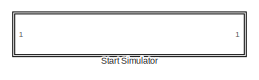
[diagram: root canvas - part 1/3, top center region]
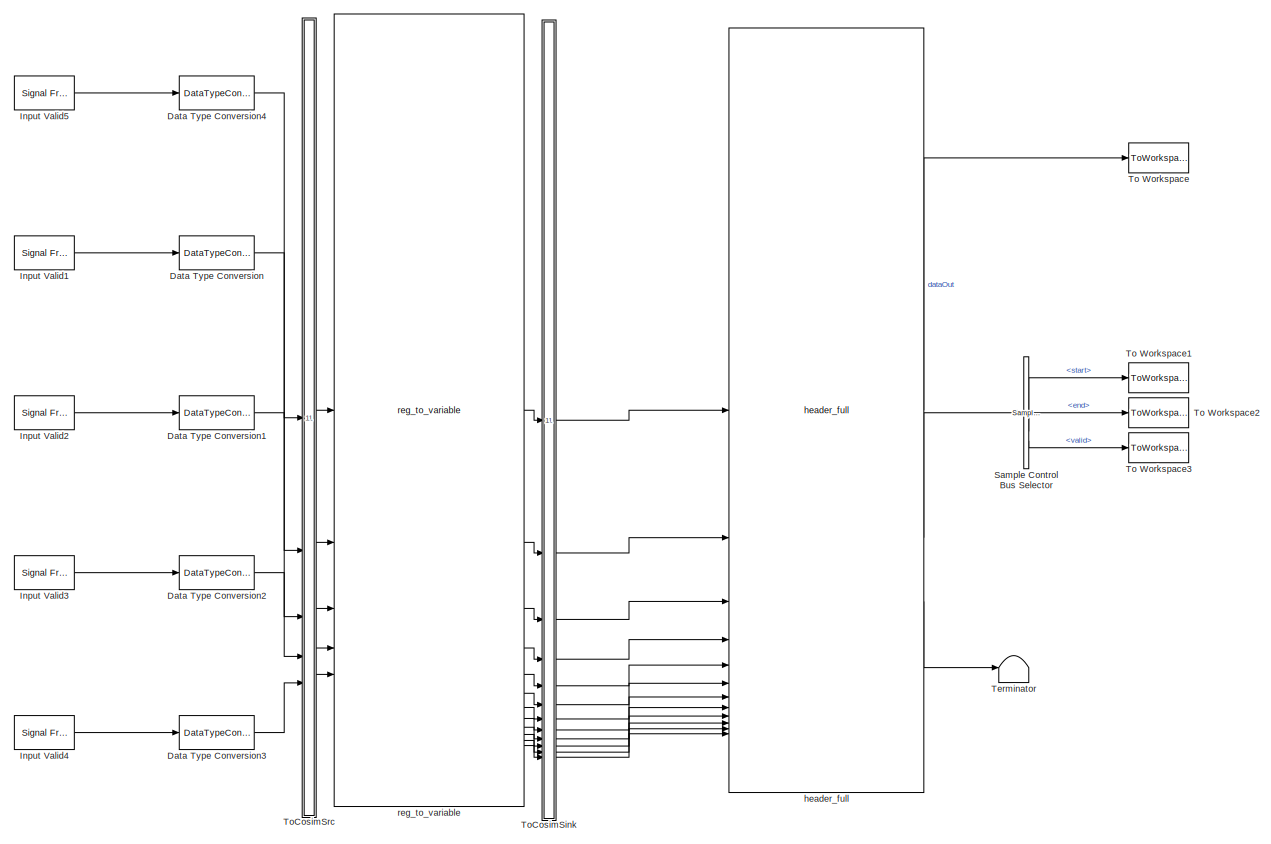
[diagram: root canvas - part 2/3, full width, top band]
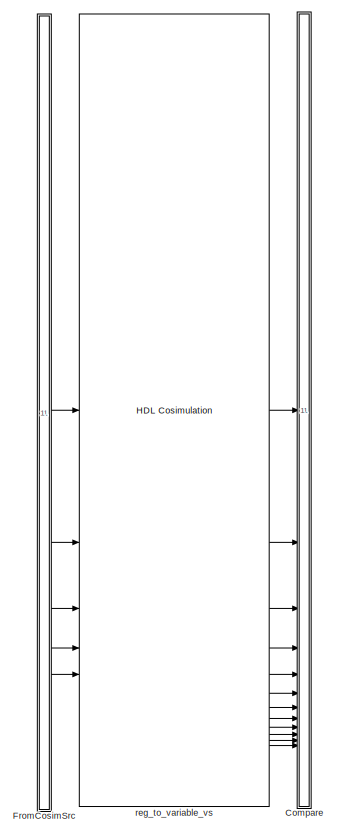
[diagram: root canvas - part 3/3, bottom center region]
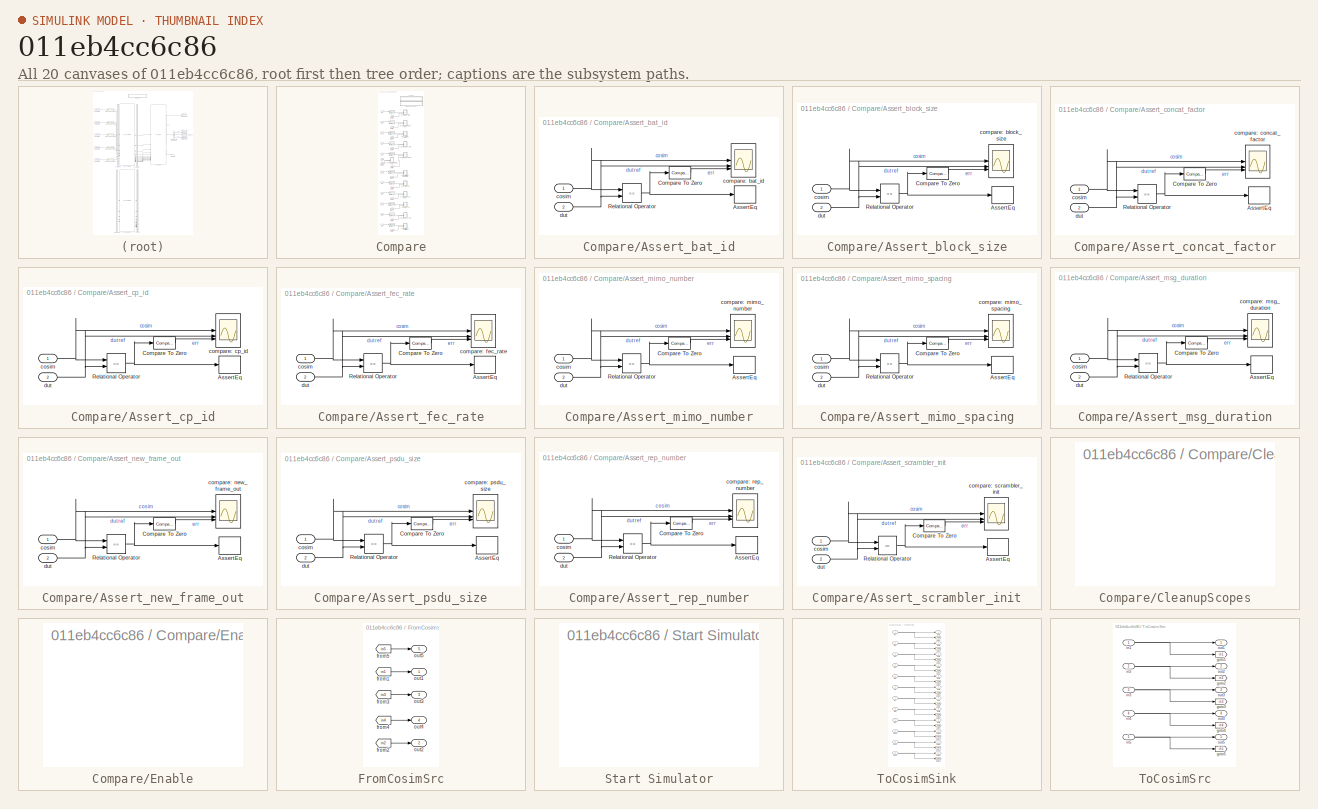
[diagram: thumbnail index - all 20 canvases of the model, root first then tree order]
MODEL slx_011eb4cc6c86
KIND model
CONFIG AbsTol = auto
CONFIG EnableMultiTasking = off
CONFIG FixedStep = auto
CONFIG MaxStep = auto
CONFIG MinStep = auto
CONFIG RelTol = 1e-3
CONFIG SampleTimeConstraint = Unconstrained
CONFIG SolverName = VariableStepAuto
CONFIG StartTime = 0.0
CONFIG StopTime = 10.0
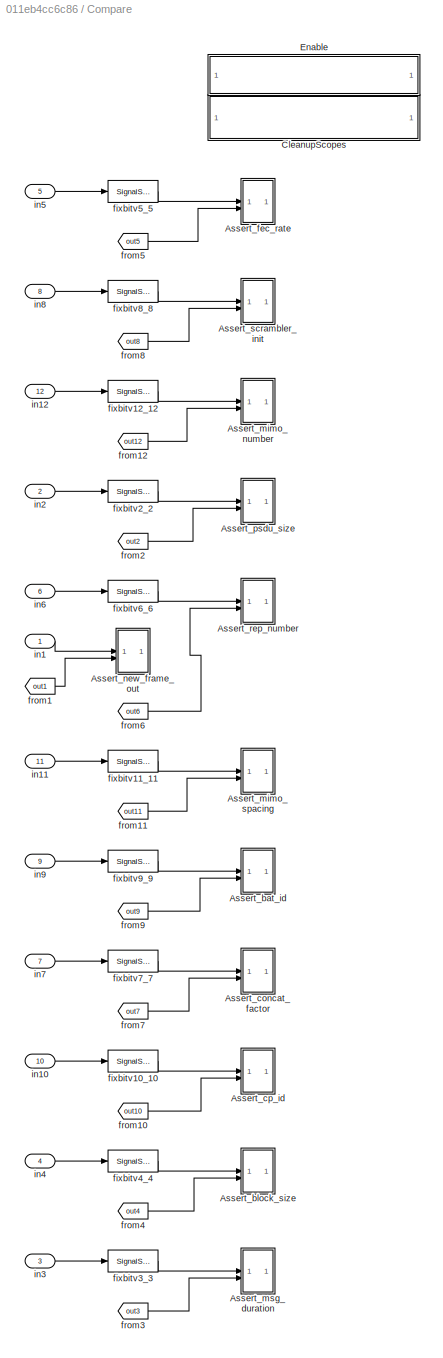
BLOCK [SubSystem] Compare
BLOCK [SubSystem] Compare/Assert_bat_id
  LibrarySourceBlock = hdlmdlgenlib/AssertEq
BLOCK [Assertion] Compare/Assert_bat_id/AssertEq
BLOCK [Reference] Compare/Assert_bat_id/Compare To Zero  REF=simulink/Logic and Bit
Operations/Compare
To Zero
  SourceBlock = simulink/Logic and Bit\nOperations/Compare\nTo Zero
  SourceType = Compare To Zero
BLOCK [RelationalOperator] Compare/Assert_bat_id/Relational Operator
  InputSameDT = off
  Operator = ==
  OutDataTypeStr = boolean
BLOCK [Scope] Compare/Assert_bat_id/compare: bat_id
  Floating = off
  NumInputPorts = 3
  ScopeSpecificationString = Simulink.scopes.TimeScopeBlockCfg('CurrentConfiguration', extmgr.ConfigurationSet(extmgr.Configuration('Core','General UI',true,'MessageLogAutoOpenMode','for warn/fail messages','ShowCloseAll',true,'ShowBringAllForward',true),extmgr.Configuration('Core','Source UI',true,'PlaybackToolbar',true),extmgr.Configuration('Sources','WiredSimulink',true,'PointsPerSignal',50000,'DataLoggingDecimation','1','...<+3704ch>
BLOCK [Inport] Compare/Assert_bat_id/cosim
BLOCK [Inport] Compare/Assert_bat_id/dut
  Port = 2
BLOCK [SubSystem] Compare/Assert_block_size
  LibrarySourceBlock = hdlmdlgenlib/AssertEq
BLOCK [Assertion] Compare/Assert_block_size/AssertEq
BLOCK [Reference] Compare/Assert_block_size/Compare To Zero  REF=simulink/Logic and Bit
Operations/Compare
To Zero
  SourceBlock = simulink/Logic and Bit\nOperations/Compare\nTo Zero
  SourceType = Compare To Zero
BLOCK [RelationalOperator] Compare/Assert_block_size/Relational Operator
  InputSameDT = off
  Operator = ==
  OutDataTypeStr = boolean
BLOCK [Scope] Compare/Assert_block_size/compare: block_size
  Floating = off
  NumInputPorts = 3
  ScopeSpecificationString = Simulink.scopes.TimeScopeBlockCfg('CurrentConfiguration', extmgr.ConfigurationSet(extmgr.Configuration('Core','General UI',true,'MessageLogAutoOpenMode','for warn/fail messages','ShowCloseAll',true,'ShowBringAllForward',true),extmgr.Configuration('Core','Source UI',true,'PlaybackToolbar',true),extmgr.Configuration('Sources','WiredSimulink',true,'PointsPerSignal',50000,'DataLoggingDecimation','1','...<+3614ch>
BLOCK [Inport] Compare/Assert_block_size/cosim
BLOCK [Inport] Compare/Assert_block_size/dut
  Port = 2
BLOCK [SubSystem] Compare/Assert_concat_factor
  LibrarySourceBlock = hdlmdlgenlib/AssertEq
BLOCK [Assertion] Compare/Assert_concat_factor/AssertEq
BLOCK [Reference] Compare/Assert_concat_factor/Compare To Zero  REF=simulink/Logic and Bit
Operations/Compare
To Zero
  SourceBlock = simulink/Logic and Bit\nOperations/Compare\nTo Zero
  SourceType = Compare To Zero
BLOCK [RelationalOperator] Compare/Assert_concat_factor/Relational Operator
  InputSameDT = off
  Operator = ==
  OutDataTypeStr = boolean
BLOCK [Scope] Compare/Assert_concat_factor/compare: concat_factor
  Floating = off
  NumInputPorts = 3
  ScopeSpecificationString = Simulink.scopes.TimeScopeBlockCfg('CurrentConfiguration', extmgr.ConfigurationSet(extmgr.Configuration('Core','General UI',true,'MessageLogAutoOpenMode','for warn/fail messages','ShowCloseAll',true,'ShowBringAllForward',true),extmgr.Configuration('Core','Source UI',true,'PlaybackToolbar',true),extmgr.Configuration('Sources','WiredSimulink',true,'PointsPerSignal',50000,'DataLoggingDecimation','1','...<+3644ch>
BLOCK [Inport] Compare/Assert_concat_factor/cosim
BLOCK [Inport] Compare/Assert_concat_factor/dut
  Port = 2
BLOCK [SubSystem] Compare/Assert_cp_id
  LibrarySourceBlock = hdlmdlgenlib/AssertEq
BLOCK [Assertion] Compare/Assert_cp_id/AssertEq
BLOCK [Reference] Compare/Assert_cp_id/Compare To Zero  REF=simulink/Logic and Bit
Operations/Compare
To Zero
  SourceBlock = simulink/Logic and Bit\nOperations/Compare\nTo Zero
  SourceType = Compare To Zero
BLOCK [RelationalOperator] Compare/Assert_cp_id/Relational Operator
  InputSameDT = off
  Operator = ==
  OutDataTypeStr = boolean
BLOCK [Scope] Compare/Assert_cp_id/compare: cp_id
  Floating = off
  NumInputPorts = 3
  ScopeSpecificationString = Simulink.scopes.TimeScopeBlockCfg('CurrentConfiguration', extmgr.ConfigurationSet(extmgr.Configuration('Core','General UI',true,'MessageLogAutoOpenMode','for warn/fail messages','ShowCloseAll',true,'ShowBringAllForward',true),extmgr.Configuration('Core','Source UI',true,'PlaybackToolbar',true),extmgr.Configuration('Sources','WiredSimulink',true,'PointsPerSignal',50000,'DataLoggingDecimation','1','...<+3644ch>
BLOCK [Inport] Compare/Assert_cp_id/cosim
BLOCK [Inport] Compare/Assert_cp_id/dut
  Port = 2
BLOCK [SubSystem] Compare/Assert_fec_rate
  LibrarySourceBlock = hdlmdlgenlib/AssertEq
BLOCK [Assertion] Compare/Assert_fec_rate/AssertEq
BLOCK [Reference] Compare/Assert_fec_rate/Compare To Zero  REF=simulink/Logic and Bit
Operations/Compare
To Zero
  SourceBlock = simulink/Logic and Bit\nOperations/Compare\nTo Zero
  SourceType = Compare To Zero
BLOCK [RelationalOperator] Compare/Assert_fec_rate/Relational Operator
  InputSameDT = off
  Operator = ==
  OutDataTypeStr = boolean
BLOCK [Scope] Compare/Assert_fec_rate/compare: fec_rate
  Floating = off
  NumInputPorts = 3
  ScopeSpecificationString = Simulink.scopes.TimeScopeBlockCfg('CurrentConfiguration', extmgr.ConfigurationSet(extmgr.Configuration('Core','General UI',true,'MessageLogAutoOpenMode','for warn/fail messages','ShowCloseAll',true,'ShowBringAllForward',true),extmgr.Configuration('Core','Source UI',true,'PlaybackToolbar',true),extmgr.Configuration('Sources','WiredSimulink',true,'PointsPerSignal',50000,'DataLoggingDecimation','1','...<+3645ch>  <repeated x4 — deduplicated; at blocks: compare: fec_rate, compare: mimo_number, compare: mimo_spacing, compare: rep_number>
BLOCK [Inport] Compare/Assert_fec_rate/cosim
BLOCK [Inport] Compare/Assert_fec_rate/dut
  Port = 2
BLOCK [SubSystem] Compare/Assert_mimo_number
  LibrarySourceBlock = hdlmdlgenlib/AssertEq
BLOCK [Assertion] Compare/Assert_mimo_number/AssertEq
BLOCK [Reference] Compare/Assert_mimo_number/Compare To Zero  REF=simulink/Logic and Bit
Operations/Compare
To Zero
  SourceBlock = simulink/Logic and Bit\nOperations/Compare\nTo Zero
  SourceType = Compare To Zero
BLOCK [RelationalOperator] Compare/Assert_mimo_number/Relational Operator
  InputSameDT = off
  Operator = ==
  OutDataTypeStr = boolean
BLOCK [Scope] Compare/Assert_mimo_number/compare: mimo_number
  Floating = off
  NumInputPorts = 3
BLOCK [Inport] Compare/Assert_mimo_number/cosim
BLOCK [Inport] Compare/Assert_mimo_number/dut
  Port = 2
BLOCK [SubSystem] Compare/Assert_mimo_spacing
  LibrarySourceBlock = hdlmdlgenlib/AssertEq
BLOCK [Assertion] Compare/Assert_mimo_spacing/AssertEq
BLOCK [Reference] Compare/Assert_mimo_spacing/Compare To Zero  REF=simulink/Logic and Bit
Operations/Compare
To Zero
  SourceBlock = simulink/Logic and Bit\nOperations/Compare\nTo Zero
  SourceType = Compare To Zero
BLOCK [RelationalOperator] Compare/Assert_mimo_spacing/Relational Operator
  InputSameDT = off
  Operator = ==
  OutDataTypeStr = boolean
BLOCK [Scope] Compare/Assert_mimo_spacing/compare: mimo_spacing
  Floating = off
  NumInputPorts = 3
BLOCK [Inport] Compare/Assert_mimo_spacing/cosim
BLOCK [Inport] Compare/Assert_mimo_spacing/dut
  Port = 2
BLOCK [SubSystem] Compare/Assert_msg_duration
  LibrarySourceBlock = hdlmdlgenlib/AssertEq
BLOCK [Assertion] Compare/Assert_msg_duration/AssertEq
BLOCK [Reference] Compare/Assert_msg_duration/Compare To Zero  REF=simulink/Logic and Bit
Operations/Compare
To Zero
  SourceBlock = simulink/Logic and Bit\nOperations/Compare\nTo Zero
  SourceType = Compare To Zero
BLOCK [RelationalOperator] Compare/Assert_msg_duration/Relational Operator
  InputSameDT = off
  Operator = ==
  OutDataTypeStr = boolean
BLOCK [Scope] Compare/Assert_msg_duration/compare: msg_duration
  Floating = off
  NumInputPorts = 3
  ScopeSpecificationString = Simulink.scopes.TimeScopeBlockCfg('CurrentConfiguration', extmgr.ConfigurationSet(extmgr.Configuration('Core','General UI',true,'MessageLogAutoOpenMode','for warn/fail messages','ShowCloseAll',true,'ShowBringAllForward',true),extmgr.Configuration('Core','Source UI',true,'PlaybackToolbar',true),extmgr.Configuration('Sources','WiredSimulink',true,'PointsPerSignal',50000,'DataLoggingDecimation','1','...<+4059ch>
BLOCK [Inport] Compare/Assert_msg_duration/cosim
BLOCK [Inport] Compare/Assert_msg_duration/dut
  Port = 2
BLOCK [SubSystem] Compare/Assert_new_frame_out
  LibrarySourceBlock = hdlmdlgenlib/AssertEq
BLOCK [Assertion] Compare/Assert_new_frame_out/AssertEq
BLOCK [Reference] Compare/Assert_new_frame_out/Compare To Zero  REF=simulink/Logic and Bit
Operations/Compare
To Zero
  SourceBlock = simulink/Logic and Bit\nOperations/Compare\nTo Zero
  SourceType = Compare To Zero
BLOCK [RelationalOperator] Compare/Assert_new_frame_out/Relational Operator
  InputSameDT = off
  Operator = ==
  OutDataTypeStr = boolean
BLOCK [Scope] Compare/Assert_new_frame_out/compare: new_frame_out
  Floating = off
  NumInputPorts = 3
  ScopeSpecificationString = Simulink.scopes.TimeScopeBlockCfg('CurrentConfiguration', extmgr.ConfigurationSet(extmgr.Configuration('Core','General UI',true,'MessageLogAutoOpenMode','for warn/fail messages','ShowCloseAll',true,'ShowBringAllForward',true),extmgr.Configuration('Core','Source UI',true,'PlaybackToolbar',true),extmgr.Configuration('Sources','WiredSimulink',true,'PointsPerSignal',50000,'DataLoggingDecimation','1','...<+3579ch>
BLOCK [Inport] Compare/Assert_new_frame_out/cosim
BLOCK [Inport] Compare/Assert_new_frame_out/dut
  Port = 2
BLOCK [SubSystem] Compare/Assert_psdu_size
  LibrarySourceBlock = hdlmdlgenlib/AssertEq
BLOCK [Assertion] Compare/Assert_psdu_size/AssertEq
BLOCK [Reference] Compare/Assert_psdu_size/Compare To Zero  REF=simulink/Logic and Bit
Operations/Compare
To Zero
  SourceBlock = simulink/Logic and Bit\nOperations/Compare\nTo Zero
  SourceType = Compare To Zero
BLOCK [RelationalOperator] Compare/Assert_psdu_size/Relational Operator
  InputSameDT = off
  Operator = ==
  OutDataTypeStr = boolean
BLOCK [Scope] Compare/Assert_psdu_size/compare: psdu_size
  Floating = off
  NumInputPorts = 3
  ScopeSpecificationString = Simulink.scopes.TimeScopeBlockCfg('CurrentConfiguration', extmgr.ConfigurationSet(extmgr.Configuration('Core','General UI',true,'MessageLogAutoOpenMode','for warn/fail messages','ShowCloseAll',true,'ShowBringAllForward',true),extmgr.Configuration('Core','Source UI',true,'PlaybackToolbar',true),extmgr.Configuration('Sources','WiredSimulink',true,'PointsPerSignal',50000,'DataLoggingDecimation','1','...<+4323ch>
BLOCK [Inport] Compare/Assert_psdu_size/cosim
BLOCK [Inport] Compare/Assert_psdu_size/dut
  Port = 2
BLOCK [SubSystem] Compare/Assert_rep_number
  LibrarySourceBlock = hdlmdlgenlib/AssertEq
BLOCK [Assertion] Compare/Assert_rep_number/AssertEq
BLOCK [Reference] Compare/Assert_rep_number/Compare To Zero  REF=simulink/Logic and Bit
Operations/Compare
To Zero
  SourceBlock = simulink/Logic and Bit\nOperations/Compare\nTo Zero
  SourceType = Compare To Zero
BLOCK [RelationalOperator] Compare/Assert_rep_number/Relational Operator
  InputSameDT = off
  Operator = ==
  OutDataTypeStr = boolean
BLOCK [Scope] Compare/Assert_rep_number/compare: rep_number
  Floating = off
  NumInputPorts = 3
BLOCK [Inport] Compare/Assert_rep_number/cosim
BLOCK [Inport] Compare/Assert_rep_number/dut
  Port = 2
BLOCK [SubSystem] Compare/Assert_scrambler_init
  LibrarySourceBlock = hdlmdlgenlib/AssertEq
BLOCK [Assertion] Compare/Assert_scrambler_init/AssertEq
BLOCK [Reference] Compare/Assert_scrambler_init/Compare To Zero  REF=simulink/Logic and Bit
Operations/Compare
To Zero
  SourceBlock = simulink/Logic and Bit\nOperations/Compare\nTo Zero
  SourceType = Compare To Zero
BLOCK [RelationalOperator] Compare/Assert_scrambler_init/Relational Operator
  InputSameDT = off
  Operator = ==
  OutDataTypeStr = boolean
BLOCK [Scope] Compare/Assert_scrambler_init/compare: scrambler_init
  Floating = off
  NumInputPorts = 3
  ScopeSpecificationString = Simulink.scopes.TimeScopeBlockCfg('CurrentConfiguration', extmgr.ConfigurationSet(extmgr.Configuration('Core','General UI',true,'MessageLogAutoOpenMode','for warn/fail messages','ShowCloseAll',true,'ShowBringAllForward',true),extmgr.Configuration('Core','Source UI',true,'PlaybackToolbar',true),extmgr.Configuration('Sources','WiredSimulink',true,'PointsPerSignal',50000,'DataLoggingDecimation','1','...<+3675ch>
BLOCK [Inport] Compare/Assert_scrambler_init/cosim
BLOCK [Inport] Compare/Assert_scrambler_init/dut
  Port = 2
BLOCK [SubSystem] Compare/CleanupScopes
  OpenFcn = blkName = gcb; %self block\nidx = regexp(blkName, '/CleanupScopes$', 'once');\nblkParent = blkName(1:idx-1);\nblks=find_system(blkParent, 'LookUnderMasks', 'all','blocktype', 'Scope');\nfor itr = 1:length(blks)\n	 hScopeCfg = get_param(blks{itr},'ScopeConfiguration');\n	 hScopeCfg.Visible = ~ hScopeCfg.Visible;\nend\ndrawnow;
BLOCK [SubSystem] Compare/Enable
  OpenFcn = blkName = gcb;\nidx = regexp(blkName, '/Enable$', 'once');\nblkParent = blkName(1:idx-1);\nblks=find_system(blkParent, 'LookUnderMasks', 'all','blocktype', 'Assertion');\ne = get_param(blks{1}, 'Enabled');\nif strcmp(e, 'on'), f= 'off';, else, f = 'on';, end\nfor ii=1:length(blks), set_param(blks{ii}, 'Enabled', f);, end\nset_param(gcb, 'MaskDisplay',['fprintf(message(''hdlcoder:cosim:vnl_dblclick_assert...<+47ch>
BLOCK [SignalSpecification] Compare/fixbitv10_10
  Dimensions = 3
  OutDataTypeStr = fixdt(0,1,0)
BLOCK [SignalSpecification] Compare/fixbitv11_11
  Dimensions = 3
  OutDataTypeStr = fixdt(0,1,0)
BLOCK [SignalSpecification] Compare/fixbitv12_12
  Dimensions = 3
  OutDataTypeStr = fixdt(0,1,0)
BLOCK [SignalSpecification] Compare/fixbitv2_2
  Dimensions = 24
  OutDataTypeStr = fixdt(0,1,0)
BLOCK [SignalSpecification] Compare/fixbitv3_3
  Dimensions = 16
  OutDataTypeStr = fixdt(0,1,0)
BLOCK [SignalSpecification] Compare/fixbitv4_4
  Dimensions = 2
  OutDataTypeStr = fixdt(0,1,0)
BLOCK [SignalSpecification] Compare/fixbitv5_5
  Dimensions = 3
  OutDataTypeStr = fixdt(0,1,0)
BLOCK [SignalSpecification] Compare/fixbitv6_6
  Dimensions = 3
  OutDataTypeStr = fixdt(0,1,0)
BLOCK [SignalSpecification] Compare/fixbitv7_7
  Dimensions = 3
  OutDataTypeStr = fixdt(0,1,0)
BLOCK [SignalSpecification] Compare/fixbitv8_8
  Dimensions = 4
  OutDataTypeStr = fixdt(0,1,0)
BLOCK [SignalSpecification] Compare/fixbitv9_9
  Dimensions = 5
  OutDataTypeStr = fixdt(0,1,0)
BLOCK [From] Compare/from1
  GotoTag = out1
  TagVisibility = global
BLOCK [From] Compare/from10
  GotoTag = out10
  TagVisibility = global
BLOCK [From] Compare/from11
  GotoTag = out11
  TagVisibility = global
BLOCK [From] Compare/from12
  GotoTag = out12
  TagVisibility = global
BLOCK [From] Compare/from2
  GotoTag = out2
  TagVisibility = global
BLOCK [From] Compare/from3
  GotoTag = out3
  TagVisibility = global
BLOCK [From] Compare/from4
  GotoTag = out4
  TagVisibility = global
BLOCK [From] Compare/from5
  GotoTag = out5
  TagVisibility = global
BLOCK [From] Compare/from6
  GotoTag = out6
  TagVisibility = global
BLOCK [From] Compare/from7
  GotoTag = out7
  TagVisibility = global
BLOCK [From] Compare/from8
  GotoTag = out8
  TagVisibility = global
BLOCK [From] Compare/from9
  GotoTag = out9
  TagVisibility = global
BLOCK [Inport] Compare/in1
BLOCK [Inport] Compare/in10
  Port = 10
BLOCK [Inport] Compare/in11
  Port = 11
BLOCK [Inport] Compare/in12
  Port = 12
BLOCK [Inport] Compare/in2
  Port = 2
BLOCK [Inport] Compare/in3
  Port = 3
BLOCK [Inport] Compare/in4
  Port = 4
BLOCK [Inport] Compare/in5
  Port = 5
BLOCK [Inport] Compare/in6
  Port = 6
BLOCK [Inport] Compare/in7
  Port = 7
BLOCK [Inport] Compare/in8
  Port = 8
BLOCK [Inport] Compare/in9
  Port = 9
BLOCK [DataTypeConversion] Data Type Conversion
  OutDataTypeStr = uint32
  RndMeth = Floor
  SaturateOnIntegerOverflow = off
BLOCK [DataTypeConversion] Data Type Conversion1
  OutDataTypeStr = uint32
  RndMeth = Floor
  SaturateOnIntegerOverflow = off
BLOCK [DataTypeConversion] Data Type Conversion2
  OutDataTypeStr = uint32
  RndMeth = Floor
  SaturateOnIntegerOverflow = off
BLOCK [DataTypeConversion] Data Type Conversion3
  OutDataTypeStr = uint32
  RndMeth = Floor
  SaturateOnIntegerOverflow = off
BLOCK [DataTypeConversion] Data Type Conversion4
  OutDataTypeStr = boolean
  RndMeth = Floor
  SaturateOnIntegerOverflow = off
BLOCK [SubSystem] FromCosimSrc
BLOCK [From] FromCosimSrc/from1
  GotoTag = in1
  TagVisibility = global
BLOCK [From] FromCosimSrc/from2
  GotoTag = in2
  TagVisibility = global
BLOCK [From] FromCosimSrc/from3
  GotoTag = in3
  TagVisibility = global
BLOCK [From] FromCosimSrc/from4
  GotoTag = in4
  TagVisibility = global
BLOCK [From] FromCosimSrc/from5
  GotoTag = in5
  TagVisibility = global
BLOCK [Outport] FromCosimSrc/out1
BLOCK [Outport] FromCosimSrc/out2
  Port = 2
BLOCK [Outport] FromCosimSrc/out3
  Port = 3
BLOCK [Outport] FromCosimSrc/out4
  Port = 4
BLOCK [Outport] FromCosimSrc/out5
  Port = 5
BLOCK [Reference] Input Valid1  REF=dspsrcs4/Signal From
Workspace
  SourceBlock = dspsrcs4/Signal From\nWorkspace
  SourceType = Signal From Workspace
BLOCK [Reference] Input Valid2  REF=dspsrcs4/Signal From
Workspace
  SourceBlock = dspsrcs4/Signal From\nWorkspace
  SourceType = Signal From Workspace
BLOCK [Reference] Input Valid3  REF=dspsrcs4/Signal From
Workspace
  SourceBlock = dspsrcs4/Signal From\nWorkspace
  SourceType = Signal From Workspace
BLOCK [Reference] Input Valid4  REF=dspsrcs4/Signal From
Workspace
  SourceBlock = dspsrcs4/Signal From\nWorkspace
  SourceType = Signal From Workspace
BLOCK [Reference] Input Valid5  REF=dspsrcs4/Signal From
Workspace
  SourceBlock = dspsrcs4/Signal From\nWorkspace
  SourceType = Signal From Workspace
BLOCK [Reference] Sample Control Bus Selector  REF=whdlutilities/Sample Control
Bus Selector
  SourceBlock = whdlutilities/Sample Control\nBus Selector
BLOCK [SubSystem] Start Simulator
  OpenFcn = cosimDirName = pwd;\ncd 'hdl_prj/hdlsrc/HDLHeaderFull';\n[s,r] = system('vivado -mode batch -source gm_HDLHeaderFull_vs.tcl','-echo');\ncd (cosimDirName);\nclear cosimDirName;\nif s\n   error('Failed to create Vivado HDL design DLL using script gm_HDLHeaderFull_vs.tcl.');\nend
BLOCK [Terminator] Terminator
BLOCK [ToWorkspace] To Workspace
  MaxDataPoints = inf
  SampleTime = 1/(8*fs)
  Save2DSignal = 2-D array (concatenate along first dimension)
  VariableName = dataOut
BLOCK [ToWorkspace] To Workspace1
  MaxDataPoints = inf
  SampleTime = 1/(8*fs)
  Save2DSignal = 2-D array (concatenate along first dimension)
  VariableName = startOut
BLOCK [ToWorkspace] To Workspace2
  MaxDataPoints = inf
  SampleTime = 1/(8*fs)
  Save2DSignal = 2-D array (concatenate along first dimension)
  VariableName = endOut
BLOCK [ToWorkspace] To Workspace3
  MaxDataPoints = inf
  SampleTime = 1/(8*fs)
  Save2DSignal = 2-D array (concatenate along first dimension)
  VariableName = validOut
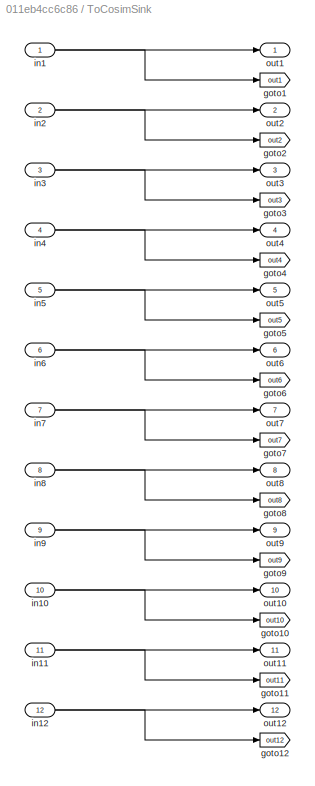
BLOCK [SubSystem] ToCosimSink
BLOCK [Goto] ToCosimSink/goto1
  GotoTag = out1
  TagVisibility = global
BLOCK [Goto] ToCosimSink/goto10
  GotoTag = out10
  TagVisibility = global
BLOCK [Goto] ToCosimSink/goto11
  GotoTag = out11
  TagVisibility = global
BLOCK [Goto] ToCosimSink/goto12
  GotoTag = out12
  TagVisibility = global
BLOCK [Goto] ToCosimSink/goto2
  GotoTag = out2
  TagVisibility = global
BLOCK [Goto] ToCosimSink/goto3
  GotoTag = out3
  TagVisibility = global
BLOCK [Goto] ToCosimSink/goto4
  GotoTag = out4
  TagVisibility = global
BLOCK [Goto] ToCosimSink/goto5
  GotoTag = out5
  TagVisibility = global
BLOCK [Goto] ToCosimSink/goto6
  GotoTag = out6
  TagVisibility = global
BLOCK [Goto] ToCosimSink/goto7
  GotoTag = out7
  TagVisibility = global
BLOCK [Goto] ToCosimSink/goto8
  GotoTag = out8
  TagVisibility = global
BLOCK [Goto] ToCosimSink/goto9
  GotoTag = out9
  TagVisibility = global
BLOCK [Inport] ToCosimSink/in1
BLOCK [Inport] ToCosimSink/in10
  Port = 10
BLOCK [Inport] ToCosimSink/in11
  Port = 11
BLOCK [Inport] ToCosimSink/in12
  Port = 12
BLOCK [Inport] ToCosimSink/in2
  Port = 2
BLOCK [Inport] ToCosimSink/in3
  Port = 3
BLOCK [Inport] ToCosimSink/in4
  Port = 4
BLOCK [Inport] ToCosimSink/in5
  Port = 5
BLOCK [Inport] ToCosimSink/in6
  Port = 6
BLOCK [Inport] ToCosimSink/in7
  Port = 7
BLOCK [Inport] ToCosimSink/in8
  Port = 8
BLOCK [Inport] ToCosimSink/in9
  Port = 9
BLOCK [Outport] ToCosimSink/out1
BLOCK [Outport] ToCosimSink/out10
  Port = 10
BLOCK [Outport] ToCosimSink/out11
  Port = 11
BLOCK [Outport] ToCosimSink/out12
  Port = 12
BLOCK [Outport] ToCosimSink/out2
  Port = 2
BLOCK [Outport] ToCosimSink/out3
  Port = 3
BLOCK [Outport] ToCosimSink/out4
  Port = 4
BLOCK [Outport] ToCosimSink/out5
  Port = 5
BLOCK [Outport] ToCosimSink/out6
  Port = 6
BLOCK [Outport] ToCosimSink/out7
  Port = 7
BLOCK [Outport] ToCosimSink/out8
  Port = 8
BLOCK [Outport] ToCosimSink/out9
  Port = 9
BLOCK [SubSystem] ToCosimSrc
BLOCK [Goto] ToCosimSrc/goto1
  GotoTag = in1
  TagVisibility = global
BLOCK [Goto] ToCosimSrc/goto2
  GotoTag = in2
  TagVisibility = global
BLOCK [Goto] ToCosimSrc/goto3
  GotoTag = in3
  TagVisibility = global
BLOCK [Goto] ToCosimSrc/goto4
  GotoTag = in4
  TagVisibility = global
BLOCK [Goto] ToCosimSrc/goto5
  GotoTag = in5
  TagVisibility = global
BLOCK [Inport] ToCosimSrc/in1
BLOCK [Inport] ToCosimSrc/in2
  Port = 2
BLOCK [Inport] ToCosimSrc/in3
  Port = 3
BLOCK [Inport] ToCosimSrc/in4
  Port = 4
BLOCK [Inport] ToCosimSrc/in5
  Port = 5
BLOCK [Outport] ToCosimSrc/out1
BLOCK [Outport] ToCosimSrc/out2
  Port = 2
BLOCK [Outport] ToCosimSrc/out3
  Port = 3
BLOCK [Outport] ToCosimSrc/out4
  Port = 4
BLOCK [Outport] ToCosimSrc/out5
  Port = 5
BLOCK [Reference] header_full  REF=HDL_ieee_8021513/header_full
  LibrarySourceBlock = hdlsllib/Ports &\nSubsystems/Subsystem
  SourceBlock = HDL_ieee_8021513/header_full
  SourceType = SubSystem
BLOCK [Reference] reg_to_variable  REF=HDL_ieee_8021513/reg_to_variable
  SourceBlock = HDL_ieee_8021513/reg_to_variable
  SourceProductName = HDL IEEE 8021513
  SourceType = SubSystem
BLOCK [Reference] reg_to_variable_vs  REF=vivadosimlib/HDL Cosimulation
  SourceBlock = vivadosimlib/HDL Cosimulation
  SourceType = Simulink and Vivado Simulator Cosimulation
  UserDataPersistent = on
LINE Compare/Assert_bat_id/Compare To Zero:1 -> Compare/Assert_bat_id/compare: bat_id:3
NET Compare/Assert_bat_id/Relational Operator:1 -> Compare/Assert_bat_id/AssertEq:1, Compare/Assert_bat_id/Compare To Zero:1
NET Compare/Assert_bat_id/cosim:1 -> Compare/Assert_bat_id/Relational Operator:1, Compare/Assert_bat_id/compare: bat_id:1
NET Compare/Assert_bat_id/dut:1 -> Compare/Assert_bat_id/Relational Operator:2, Compare/Assert_bat_id/compare: bat_id:2
LINE Compare/Assert_block_size/Compare To Zero:1 -> Compare/Assert_block_size/compare: block_size:3
NET Compare/Assert_block_size/Relational Operator:1 -> Compare/Assert_block_size/AssertEq:1, Compare/Assert_block_size/Compare To Zero:1
NET Compare/Assert_block_size/cosim:1 -> Compare/Assert_block_size/Relational Operator:1, Compare/Assert_block_size/compare: block_size:1
NET Compare/Assert_block_size/dut:1 -> Compare/Assert_block_size/Relational Operator:2, Compare/Assert_block_size/compare: block_size:2
LINE Compare/Assert_concat_factor/Compare To Zero:1 -> Compare/Assert_concat_factor/compare: concat_factor:3
NET Compare/Assert_concat_factor/Relational Operator:1 -> Compare/Assert_concat_factor/AssertEq:1, Compare/Assert_concat_factor/Compare To Zero:1
NET Compare/Assert_concat_factor/cosim:1 -> Compare/Assert_concat_factor/Relational Operator:1, Compare/Assert_concat_factor/compare: concat_factor:1
NET Compare/Assert_concat_factor/dut:1 -> Compare/Assert_concat_factor/Relational Operator:2, Compare/Assert_concat_factor/compare: concat_factor:2
LINE Compare/Assert_cp_id/Compare To Zero:1 -> Compare/Assert_cp_id/compare: cp_id:3
NET Compare/Assert_cp_id/Relational Operator:1 -> Compare/Assert_cp_id/AssertEq:1, Compare/Assert_cp_id/Compare To Zero:1
NET Compare/Assert_cp_id/cosim:1 -> Compare/Assert_cp_id/Relational Operator:1, Compare/Assert_cp_id/compare: cp_id:1
NET Compare/Assert_cp_id/dut:1 -> Compare/Assert_cp_id/Relational Operator:2, Compare/Assert_cp_id/compare: cp_id:2
LINE Compare/Assert_fec_rate/Compare To Zero:1 -> Compare/Assert_fec_rate/compare: fec_rate:3
NET Compare/Assert_fec_rate/Relational Operator:1 -> Compare/Assert_fec_rate/AssertEq:1, Compare/Assert_fec_rate/Compare To Zero:1
NET Compare/Assert_fec_rate/cosim:1 -> Compare/Assert_fec_rate/Relational Operator:1, Compare/Assert_fec_rate/compare: fec_rate:1
NET Compare/Assert_fec_rate/dut:1 -> Compare/Assert_fec_rate/Relational Operator:2, Compare/Assert_fec_rate/compare: fec_rate:2
LINE Compare/Assert_mimo_number/Compare To Zero:1 -> Compare/Assert_mimo_number/compare: mimo_number:3
NET Compare/Assert_mimo_number/Relational Operator:1 -> Compare/Assert_mimo_number/AssertEq:1, Compare/Assert_mimo_number/Compare To Zero:1
NET Compare/Assert_mimo_number/cosim:1 -> Compare/Assert_mimo_number/Relational Operator:1, Compare/Assert_mimo_number/compare: mimo_number:1
NET Compare/Assert_mimo_number/dut:1 -> Compare/Assert_mimo_number/Relational Operator:2, Compare/Assert_mimo_number/compare: mimo_number:2
LINE Compare/Assert_mimo_spacing/Compare To Zero:1 -> Compare/Assert_mimo_spacing/compare: mimo_spacing:3
NET Compare/Assert_mimo_spacing/Relational Operator:1 -> Compare/Assert_mimo_spacing/AssertEq:1, Compare/Assert_mimo_spacing/Compare To Zero:1
NET Compare/Assert_mimo_spacing/cosim:1 -> Compare/Assert_mimo_spacing/Relational Operator:1, Compare/Assert_mimo_spacing/compare: mimo_spacing:1
NET Compare/Assert_mimo_spacing/dut:1 -> Compare/Assert_mimo_spacing/Relational Operator:2, Compare/Assert_mimo_spacing/compare: mimo_spacing:2
LINE Compare/Assert_msg_duration/Compare To Zero:1 -> Compare/Assert_msg_duration/compare: msg_duration:3
NET Compare/Assert_msg_duration/Relational Operator:1 -> Compare/Assert_msg_duration/AssertEq:1, Compare/Assert_msg_duration/Compare To Zero:1
NET Compare/Assert_msg_duration/cosim:1 -> Compare/Assert_msg_duration/Relational Operator:1, Compare/Assert_msg_duration/compare: msg_duration:1
NET Compare/Assert_msg_duration/dut:1 -> Compare/Assert_msg_duration/Relational Operator:2, Compare/Assert_msg_duration/compare: msg_duration:2
LINE Compare/Assert_new_frame_out/Compare To Zero:1 -> Compare/Assert_new_frame_out/compare: new_frame_out:3
NET Compare/Assert_new_frame_out/Relational Operator:1 -> Compare/Assert_new_frame_out/AssertEq:1, Compare/Assert_new_frame_out/Compare To Zero:1
NET Compare/Assert_new_frame_out/cosim:1 -> Compare/Assert_new_frame_out/Relational Operator:1, Compare/Assert_new_frame_out/compare: new_frame_out:1
NET Compare/Assert_new_frame_out/dut:1 -> Compare/Assert_new_frame_out/Relational Operator:2, Compare/Assert_new_frame_out/compare: new_frame_out:2
LINE Compare/Assert_psdu_size/Compare To Zero:1 -> Compare/Assert_psdu_size/compare: psdu_size:3
NET Compare/Assert_psdu_size/Relational Operator:1 -> Compare/Assert_psdu_size/AssertEq:1, Compare/Assert_psdu_size/Compare To Zero:1
NET Compare/Assert_psdu_size/cosim:1 -> Compare/Assert_psdu_size/Relational Operator:1, Compare/Assert_psdu_size/compare: psdu_size:1
NET Compare/Assert_psdu_size/dut:1 -> Compare/Assert_psdu_size/Relational Operator:2, Compare/Assert_psdu_size/compare: psdu_size:2
LINE Compare/Assert_rep_number/Compare To Zero:1 -> Compare/Assert_rep_number/compare: rep_number:3
NET Compare/Assert_rep_number/Relational Operator:1 -> Compare/Assert_rep_number/AssertEq:1, Compare/Assert_rep_number/Compare To Zero:1
NET Compare/Assert_rep_number/cosim:1 -> Compare/Assert_rep_number/Relational Operator:1, Compare/Assert_rep_number/compare: rep_number:1
NET Compare/Assert_rep_number/dut:1 -> Compare/Assert_rep_number/Relational Operator:2, Compare/Assert_rep_number/compare: rep_number:2
LINE Compare/Assert_scrambler_init/Compare To Zero:1 -> Compare/Assert_scrambler_init/compare: scrambler_init:3
NET Compare/Assert_scrambler_init/Relational Operator:1 -> Compare/Assert_scrambler_init/AssertEq:1, Compare/Assert_scrambler_init/Compare To Zero:1
NET Compare/Assert_scrambler_init/cosim:1 -> Compare/Assert_scrambler_init/Relational Operator:1, Compare/Assert_scrambler_init/compare: scrambler_init:1
NET Compare/Assert_scrambler_init/dut:1 -> Compare/Assert_scrambler_init/Relational Operator:2, Compare/Assert_scrambler_init/compare: scrambler_init:2
LINE Compare/fixbitv10_10:1 -> Compare/Assert_cp_id:1
LINE Compare/fixbitv11_11:1 -> Compare/Assert_mimo_spacing:1
LINE Compare/fixbitv12_12:1 -> Compare/Assert_mimo_number:1
LINE Compare/fixbitv2_2:1 -> Compare/Assert_psdu_size:1
LINE Compare/fixbitv3_3:1 -> Compare/Assert_msg_duration:1
LINE Compare/fixbitv4_4:1 -> Compare/Assert_block_size:1
LINE Compare/fixbitv5_5:1 -> Compare/Assert_fec_rate:1
LINE Compare/fixbitv6_6:1 -> Compare/Assert_rep_number:1
LINE Compare/fixbitv7_7:1 -> Compare/Assert_concat_factor:1
LINE Compare/fixbitv8_8:1 -> Compare/Assert_scrambler_init:1
LINE Compare/fixbitv9_9:1 -> Compare/Assert_bat_id:1
LINE Compare/from10:1 -> Compare/Assert_cp_id:2
LINE Compare/from11:1 -> Compare/Assert_mimo_spacing:2
LINE Compare/from12:1 -> Compare/Assert_mimo_number:2
LINE Compare/from1:1 -> Compare/Assert_new_frame_out:2
LINE Compare/from2:1 -> Compare/Assert_psdu_size:2
LINE Compare/from3:1 -> Compare/Assert_msg_duration:2
LINE Compare/from4:1 -> Compare/Assert_block_size:2
LINE Compare/from5:1 -> Compare/Assert_fec_rate:2
LINE Compare/from6:1 -> Compare/Assert_rep_number:2
LINE Compare/from7:1 -> Compare/Assert_concat_factor:2
LINE Compare/from8:1 -> Compare/Assert_scrambler_init:2
LINE Compare/from9:1 -> Compare/Assert_bat_id:2
LINE Compare/in10:1 -> Compare/fixbitv10_10:1
LINE Compare/in11:1 -> Compare/fixbitv11_11:1
LINE Compare/in12:1 -> Compare/fixbitv12_12:1
LINE Compare/in1:1 -> Compare/Assert_new_frame_out:1
LINE Compare/in2:1 -> Compare/fixbitv2_2:1
LINE Compare/in3:1 -> Compare/fixbitv3_3:1
LINE Compare/in4:1 -> Compare/fixbitv4_4:1
LINE Compare/in5:1 -> Compare/fixbitv5_5:1
LINE Compare/in6:1 -> Compare/fixbitv6_6:1
LINE Compare/in7:1 -> Compare/fixbitv7_7:1
LINE Compare/in8:1 -> Compare/fixbitv8_8:1
LINE Compare/in9:1 -> Compare/fixbitv9_9:1
LINE Data Type Conversion1:1 -> ToCosimSrc:3
LINE Data Type Conversion2:1 -> ToCosimSrc:4
LINE Data Type Conversion3:1 -> ToCosimSrc:5
LINE Data Type Conversion4:1 -> ToCosimSrc:1
LINE Data Type Conversion:1 -> ToCosimSrc:2
LINE FromCosimSrc/from1:1 -> FromCosimSrc/out1:1
LINE FromCosimSrc/from2:1 -> FromCosimSrc/out2:1
LINE FromCosimSrc/from3:1 -> FromCosimSrc/out3:1
LINE FromCosimSrc/from4:1 -> FromCosimSrc/out4:1
LINE FromCosimSrc/from5:1 -> FromCosimSrc/out5:1
LINE FromCosimSrc:1 -> reg_to_variable_vs:1
LINE FromCosimSrc:2 -> reg_to_variable_vs:2
LINE FromCosimSrc:3 -> reg_to_variable_vs:3
LINE FromCosimSrc:4 -> reg_to_variable_vs:4
LINE FromCosimSrc:5 -> reg_to_variable_vs:5
LINE Input Valid1:1 -> Data Type Conversion:1
LINE Input Valid2:1 -> Data Type Conversion1:1
LINE Input Valid3:1 -> Data Type Conversion2:1
LINE Input Valid4:1 -> Data Type Conversion3:1
LINE Input Valid5:1 -> Data Type Conversion4:1
LINE Sample Control Bus Selector:1 -> To Workspace1:1
LINE Sample Control Bus Selector:2 -> To Workspace2:1
LINE Sample Control Bus Selector:3 -> To Workspace3:1
NET ToCosimSink/in10:1 -> ToCosimSink/goto10:1, ToCosimSink/out10:1
NET ToCosimSink/in11:1 -> ToCosimSink/goto11:1, ToCosimSink/out11:1
NET ToCosimSink/in12:1 -> ToCosimSink/goto12:1, ToCosimSink/out12:1
NET ToCosimSink/in1:1 -> ToCosimSink/goto1:1, ToCosimSink/out1:1
NET ToCosimSink/in2:1 -> ToCosimSink/goto2:1, ToCosimSink/out2:1
NET ToCosimSink/in3:1 -> ToCosimSink/goto3:1, ToCosimSink/out3:1
NET ToCosimSink/in4:1 -> ToCosimSink/goto4:1, ToCosimSink/out4:1
NET ToCosimSink/in5:1 -> ToCosimSink/goto5:1, ToCosimSink/out5:1
NET ToCosimSink/in6:1 -> ToCosimSink/goto6:1, ToCosimSink/out6:1
NET ToCosimSink/in7:1 -> ToCosimSink/goto7:1, ToCosimSink/out7:1
NET ToCosimSink/in8:1 -> ToCosimSink/goto8:1, ToCosimSink/out8:1
NET ToCosimSink/in9:1 -> ToCosimSink/goto9:1, ToCosimSink/out9:1
LINE ToCosimSink:1 -> header_full:1
LINE ToCosimSink:10 -> header_full:10
LINE ToCosimSink:11 -> header_full:11
LINE ToCosimSink:12 -> header_full:12
LINE ToCosimSink:2 -> header_full:2
LINE ToCosimSink:3 -> header_full:3
LINE ToCosimSink:4 -> header_full:4
LINE ToCosimSink:5 -> header_full:5
LINE ToCosimSink:6 -> header_full:6
LINE ToCosimSink:7 -> header_full:7
LINE ToCosimSink:8 -> header_full:8
LINE ToCosimSink:9 -> header_full:9
NET ToCosimSrc/in1:1 -> ToCosimSrc/goto1:1, ToCosimSrc/out1:1
NET ToCosimSrc/in2:1 -> ToCosimSrc/goto2:1, ToCosimSrc/out2:1
NET ToCosimSrc/in3:1 -> ToCosimSrc/goto3:1, ToCosimSrc/out3:1
NET ToCosimSrc/in4:1 -> ToCosimSrc/goto4:1, ToCosimSrc/out4:1
NET ToCosimSrc/in5:1 -> ToCosimSrc/goto5:1, ToCosimSrc/out5:1
LINE ToCosimSrc:1 -> reg_to_variable:1
LINE ToCosimSrc:2 -> reg_to_variable:2
LINE ToCosimSrc:3 -> reg_to_variable:3
LINE ToCosimSrc:4 -> reg_to_variable:4
LINE ToCosimSrc:5 -> reg_to_variable:5
LINE header_full:1 -> To Workspace:1
LINE header_full:2 -> Sample Control Bus Selector:1
LINE header_full:3 -> Terminator:1
LINE reg_to_variable:1 -> ToCosimSink:1
LINE reg_to_variable:10 -> ToCosimSink:10
LINE reg_to_variable:11 -> ToCosimSink:11
LINE reg_to_variable:12 -> ToCosimSink:12
LINE reg_to_variable:2 -> ToCosimSink:2
LINE reg_to_variable:3 -> ToCosimSink:3
LINE reg_to_variable:4 -> ToCosimSink:4
LINE reg_to_variable:5 -> ToCosimSink:5
LINE reg_to_variable:6 -> ToCosimSink:6
LINE reg_to_variable:7 -> ToCosimSink:7
LINE reg_to_variable:8 -> ToCosimSink:8
LINE reg_to_variable:9 -> ToCosimSink:9
LINE reg_to_variable_vs:1 -> Compare:1
LINE reg_to_variable_vs:10 -> Compare:10
LINE reg_to_variable_vs:11 -> Compare:11
LINE reg_to_variable_vs:12 -> Compare:12
LINE reg_to_variable_vs:2 -> Compare:2
LINE reg_to_variable_vs:3 -> Compare:3
LINE reg_to_variable_vs:4 -> Compare:4
LINE reg_to_variable_vs:5 -> Compare:5
LINE reg_to_variable_vs:6 -> Compare:6
LINE reg_to_variable_vs:7 -> Compare:7
LINE reg_to_variable_vs:8 -> Compare:8
LINE reg_to_variable_vs:9 -> Compare:9
note: NET lines group one-source signal fan-out (src -> all destinations, sorted); 1:1 wires keep LINE
